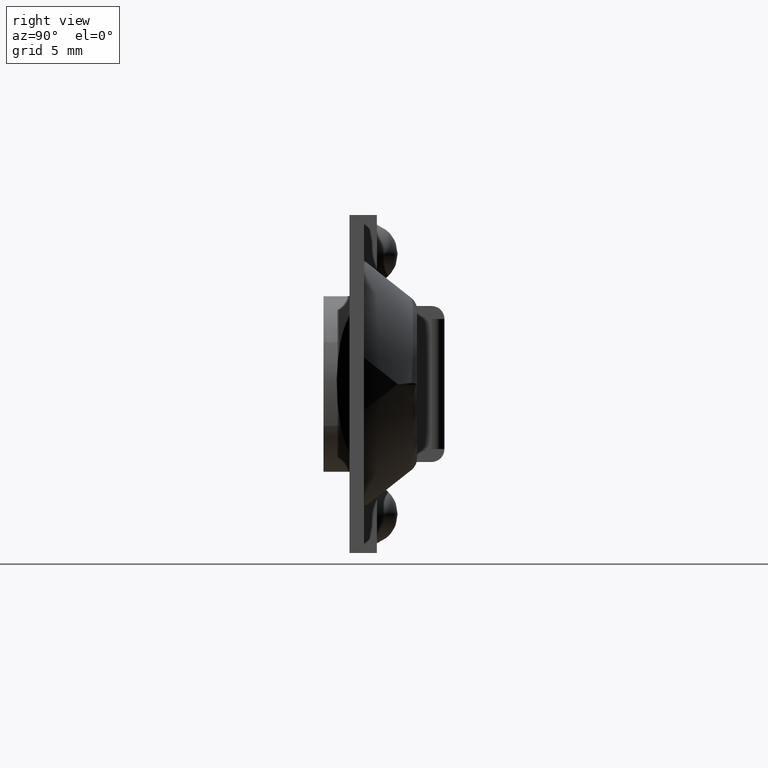
[diagram: clean part render]
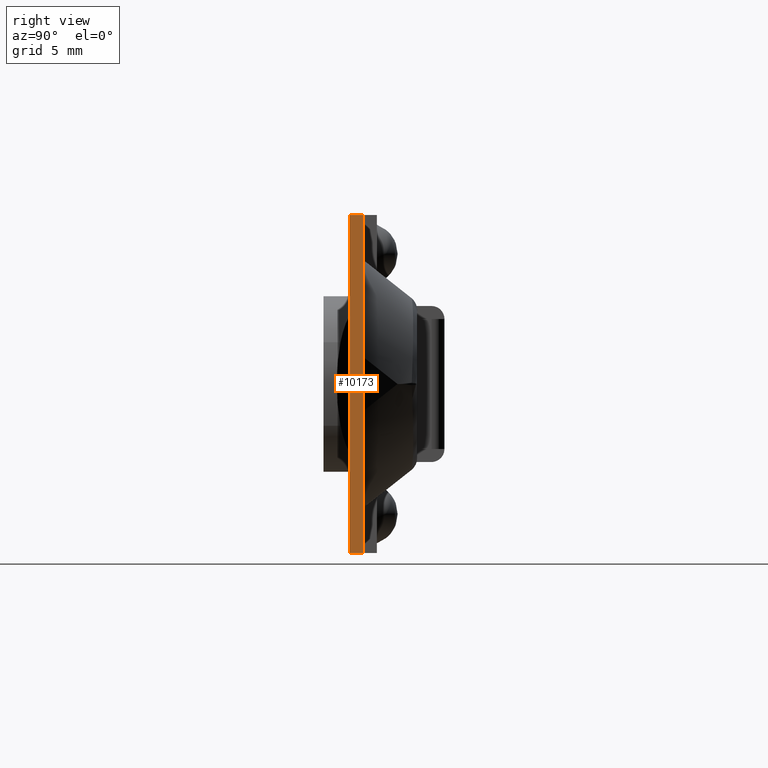
[diagram: same view with one face highlighted and labeled with its STEP entity id]
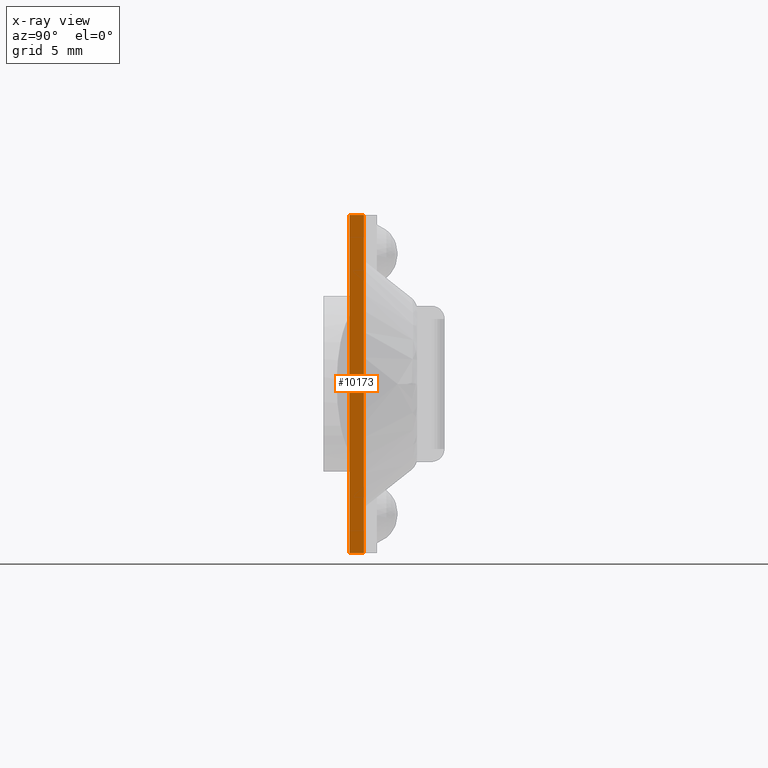
[diagram: x-ray of the same camera — body ghosted, the highlighted face saturated]
A machine part, right view. The second image highlights one B-rep face of the part: STEP entity #10173.
The next image is the same camera in x-ray: the body ghosted, the highlighted face saturated — about 0% of this face is hidden behind the body in this view.
In plain terms, the highlighted face is a freeform B-spline surface patch.
Its self-contained STEP definition (entity closure, byte-faithful):
#10021=CARTESIAN_POINT('',(34.199997000000003,0.0,13.0));
#10022=VERTEX_POINT('',#10021);
#10035=CARTESIAN_POINT('',(34.199997000000003,0.0,-13.0));
#10036=VERTEX_POINT('',#10035);
#10042=CARTESIAN_POINT('',(34.199997000000003,0.0,13.0));
#10043=CARTESIAN_POINT('',(34.199997000000003,0.0,-13.0));
#10044=QUASI_UNIFORM_CURVE('',1,(#10042,#10043),.UNSPECIFIED.,.F.,.U.);
#10045=EDGE_CURVE('',#10022,#10036,#10044,.T.);
#10137=CARTESIAN_POINT('',(34.199997000000003,1.099997000000074,-13.0));
#10138=VERTEX_POINT('',#10137);
#10144=CARTESIAN_POINT('',(34.199997000000003,1.099997000000074,-13.0));
#10145=CARTESIAN_POINT('',(34.199997000000003,0.0,-13.0));
#10146=QUASI_UNIFORM_CURVE('',1,(#10144,#10145),.UNSPECIFIED.,.F.,.U.);
#10147=EDGE_CURVE('',#10138,#10036,#10146,.T.);
#10152=CARTESIAN_POINT('',(34.199997000000003,-0.054944848017996,-14.298699949606959));
#10153=CARTESIAN_POINT('',(34.199997000000003,-0.054944848017996,14.298700646981301));
#10154=CARTESIAN_POINT('',(34.199997000000003,1.154941877522289,-14.298699949606959));
#10155=CARTESIAN_POINT('',(34.199997000000003,1.154941877522289,14.298700646981301));
#10156=B_SPLINE_SURFACE_WITH_KNOTS('',1,1,((#10152,#10154),(#10153,#10155)),.UNSPECIFIED.,.F.,.F.,.U.,(2,2),(2,2),(0.0,28.597400596588258),(0.041708334948495,0.958291687403247),.UNSPECIFIED.);
#10157=ORIENTED_EDGE('',*,*,#10045,.T.);
#10158=ORIENTED_EDGE('',*,*,#10147,.F.);
#10159=CARTESIAN_POINT('',(34.199997000000003,1.099997000000074,13.0));
#10160=VERTEX_POINT('',#10159);
#10161=CARTESIAN_POINT('',(34.199997000000003,1.099997000000074,13.0));
#10162=CARTESIAN_POINT('',(34.199997000000003,1.099997000000074,-13.0));
#10163=QUASI_UNIFORM_CURVE('',1,(#10161,#10162),.UNSPECIFIED.,.F.,.U.);
#10164=EDGE_CURVE('',#10160,#10138,#10163,.T.);
#10165=ORIENTED_EDGE('',*,*,#10164,.F.);
#10166=CARTESIAN_POINT('',(34.199997000000003,1.099997000000074,13.0));
#10167=CARTESIAN_POINT('',(34.199997000000003,0.0,13.0));
#10168=QUASI_UNIFORM_CURVE('',1,(#10166,#10167),.UNSPECIFIED.,.F.,.U.);
#10169=EDGE_CURVE('',#10160,#10022,#10168,.T.);
#10170=ORIENTED_EDGE('',*,*,#10169,.T.);
#10171=EDGE_LOOP('',(#10157,#10158,#10165,#10170));
#10172=FACE_OUTER_BOUND('',#10171,.T.);
#10173=ADVANCED_FACE('',(#10172),#10156,.F.);